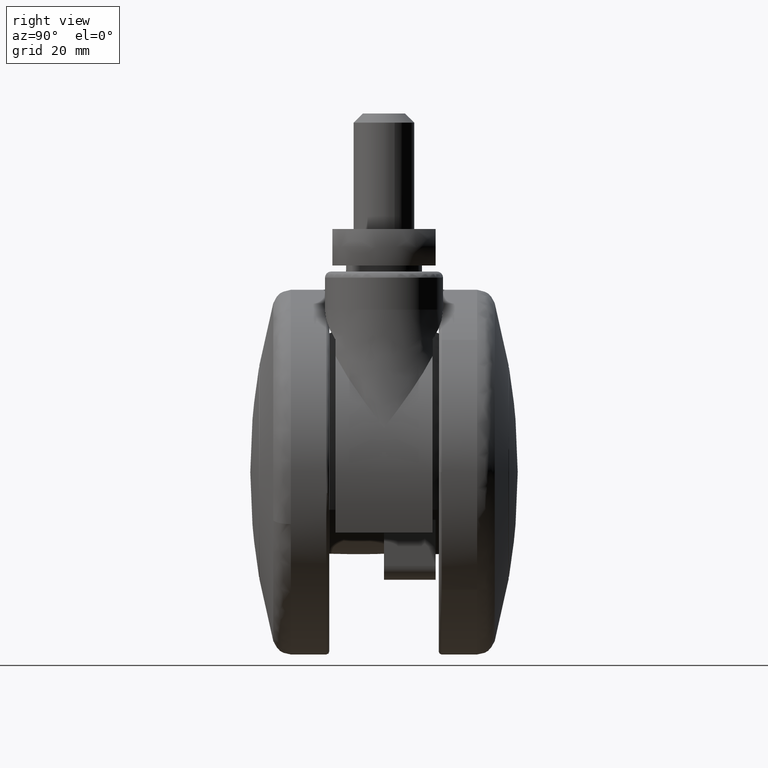
[diagram: clean part render]
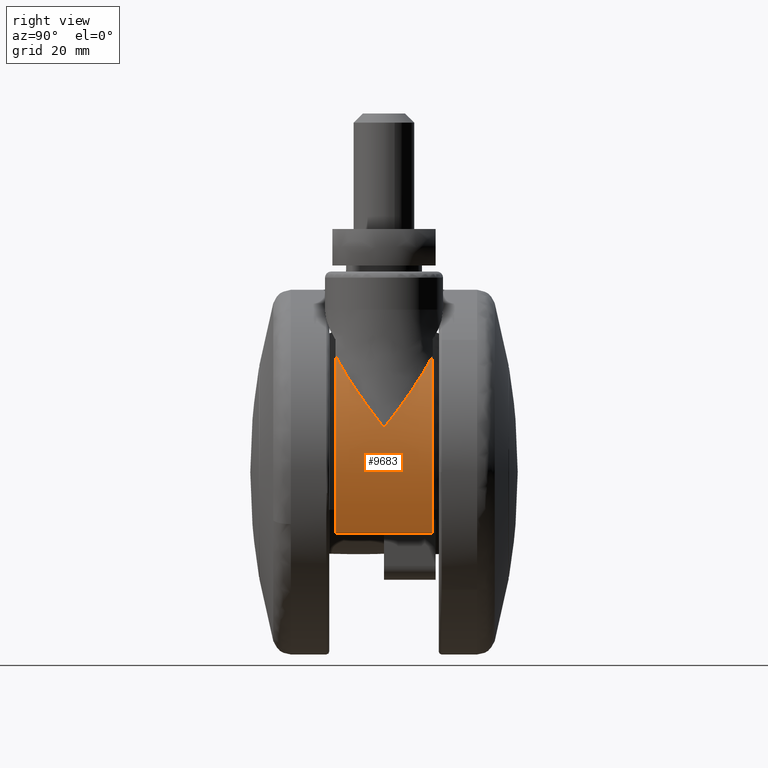
[diagram: same view with one face highlighted and labeled with its STEP entity id]
A machine part, right view. The second image highlights one B-rep face of the part: STEP entity #9683.
In plain terms, the highlighted face is a freeform B-spline surface patch.
Its self-contained STEP definition (entity closure, byte-faithful):
#8672=CARTESIAN_POINT('',(28.284271247461898,7.999999999999789,-10.0));
#8673=VERTEX_POINT('',#8672);
#8679=CARTESIAN_POINT('',(28.284271247461898,-8.0,-10.0));
#8680=VERTEX_POINT('',#8679);
#8681=CARTESIAN_POINT('',(28.284271247461898,7.999999999999789,-10.0));
#8682=CARTESIAN_POINT('',(28.284271247461898,-8.0,-10.0));
#8683=QUASI_UNIFORM_CURVE('',1,(#8681,#8682),.UNSPECIFIED.,.F.,.U.);
#8684=EDGE_CURVE('',#8673,#8680,#8683,.T.);
#9525=CARTESIAN_POINT('',(23.103097454689198,8.0,19.137577903150049));
#9526=VERTEX_POINT('',#9525);
#9553=CARTESIAN_POINT('',(23.103097454686399,-8.0,19.137577903167202));
#9554=VERTEX_POINT('',#9553);
#9564=CARTESIAN_POINT('',(29.099999981897049,0.0,7.293147540917500));
#9565=VERTEX_POINT('',#9564);
#9566=CARTESIAN_POINT('',(23.103097454686399,-8.0,19.137577903167202));
#9567=CARTESIAN_POINT('',(23.491631637550590,-7.759921766544590,18.668535104915851));
#9568=CARTESIAN_POINT('',(23.861664040296329,-7.501385195813394,18.192805815168370));
#9569=CARTESIAN_POINT('',(24.302695428004188,-7.157899281450686,17.589807263616891));
#9570=CARTESIAN_POINT('',(24.389823918570830,-7.088182645651417,17.468790537750099));
#9571=CARTESIAN_POINT('',(24.561957064227968,-6.946765772501954,17.225922872394939));
#9572=CARTESIAN_POINT('',(24.647026837928379,-6.875006669551032,17.103974512818731));
#9573=CARTESIAN_POINT('',(24.898200931065560,-6.657617515530697,16.738192696200670));
#9574=CARTESIAN_POINT('',(25.060512346987970,-6.509693952427899,16.494097010694659));
#9575=CARTESIAN_POINT('',(25.532916366758212,-6.057669066768609,15.760972145622899));
#9576=CARTESIAN_POINT('',(25.828513924086440,-5.745343256792403,15.271100378987400));
#9577=CARTESIAN_POINT('',(26.384710847762982,-5.101786528413657,14.288655352823589));
#9578=CARTESIAN_POINT('',(26.645298164523592,-4.770544504798438,13.796084380968949));
#9579=CARTESIAN_POINT('',(27.378549178466240,-3.751748403265429,12.313832830399440));
#9580=CARTESIAN_POINT('',(27.802943836338869,-3.039305799145861,11.319596698239630));
#9581=CARTESIAN_POINT('',(28.353057974389920,-1.929372298915899,9.817756482274151));
#9582=CARTESIAN_POINT('',(28.521947862301928,-1.552463419039976,9.315401158644908));
#9583=CARTESIAN_POINT('',(28.754323615094119,-0.977402316337553,8.559113598383249));
#9584=CARTESIAN_POINT('',(28.865267230480612,-0.687444115511029,8.180281372320016));
#9585=CARTESIAN_POINT('',(28.985647126623931,-0.345034520211045,7.737075370849777));
#9586=CARTESIAN_POINT('',(29.043586020016139,-0.172812742084711,7.515159311413918));
#9587=CARTESIAN_POINT('',(29.071994461517999,-0.086451033188515,7.404121419792639));
#9588=CARTESIAN_POINT('',(29.084049949369991,-0.049388514740103,7.356514564828036));
#9589=CARTESIAN_POINT('',(29.092061381019910,-0.024675297097744,7.324768433400821));
#9590=CARTESIAN_POINT('',(29.096117419647381,-0.012405675040626,7.308639145983944));
#9591=CARTESIAN_POINT('',(29.099999981897049,0.0,7.293147540917500));
#9592=B_SPLINE_CURVE_WITH_KNOTS('',3,(#9566,#9567,#9568,#9569,#9570,#9571,#9572,#9573,#9574,#9575,#9576,#9577,#9578,#9579,#9580,#9581,#9582,#9583,#9584,#9585,#9586,#9587,#9588,#9589,#9590,#9591),.UNSPECIFIED.,.F.,.U.,(4,2,2,2,2,2,2,2,2,1,1,1,1,2,4),(0.0,0.124999999999999,0.156249999999999,0.187499999999999,0.249999999999999,0.374999999999999,0.499999999999999,0.749999999999999,0.874999999999999,0.937499999999999,0.968750000000000,0.984375000000000,0.992187500000000,0.996093750000000,1.0),.UNSPECIFIED.);
#9593=EDGE_CURVE('',#9554,#9565,#9592,.T.);
#9595=CARTESIAN_POINT('',(29.099999981897049,0.0,7.293147540917500));
#9596=CARTESIAN_POINT('',(29.096117419647399,0.012405675040615,7.308639145983928));
#9597=CARTESIAN_POINT('',(29.092061381019938,0.024675297097942,7.324768433400650));
#9598=CARTESIAN_POINT('',(29.084049949370009,0.049388514740169,7.356514564827907));
#9599=CARTESIAN_POINT('',(29.071994461518049,0.086451033188551,7.404121419792466));
#9600=CARTESIAN_POINT('',(29.043586020016161,0.172812742084423,7.515159311413808));
#9601=CARTESIAN_POINT('',(28.985647126624020,0.345034520210642,7.737075370849449));
#9602=CARTESIAN_POINT('',(28.865267230480839,0.687444115510434,8.180281372319229));
#9603=CARTESIAN_POINT('',(28.754323615094449,0.977402316336697,8.559113598382130));
#9604=CARTESIAN_POINT('',(28.521947862302500,1.552463419038628,9.315401158643123));
#9605=CARTESIAN_POINT('',(28.353057974390719,1.929372298914327,9.817756482271872));
#9606=CARTESIAN_POINT('',(27.802943836340280,3.039305799143338,11.319596698236060));
#9607=CARTESIAN_POINT('',(27.378549178468159,3.751748403262273,12.313832830395061));
#9608=CARTESIAN_POINT('',(26.645298164526508,4.770544504794565,13.796084380963279));
#9609=CARTESIAN_POINT('',(26.384710847766272,5.101786528409592,14.288655352817480));
#9610=CARTESIAN_POINT('',(25.828513924090519,5.745343256787934,15.271100378980440));
#9611=CARTESIAN_POINT('',(25.532916366762731,6.057669066763936,15.760972145615520));
#9612=CARTESIAN_POINT('',(25.060512346993221,6.509693952423003,16.494097010686659));
#9613=CARTESIAN_POINT('',(24.898200931071081,6.657617515525739,16.738192696192449));
#9614=CARTESIAN_POINT('',(24.647026837934309,6.875006669545988,17.103974512810201));
#9615=CARTESIAN_POINT('',(24.561957064234019,6.946765772496899,17.225922872386310));
#9616=CARTESIAN_POINT('',(24.389823918577129,7.088182645646329,17.468790537741310));
#9617=CARTESIAN_POINT('',(24.302695428010619,7.157899281445573,17.589807263608002));
#9618=CARTESIAN_POINT('',(23.861664040303420,7.501385195808230,18.192805815159041));
#9619=CARTESIAN_POINT('',(23.491631637558239,7.759921766539451,18.668535104906180));
#9620=CARTESIAN_POINT('',(23.103097454689198,8.0,19.137577903150049));
#9621=B_SPLINE_CURVE_WITH_KNOTS('',3,(#9595,#9596,#9597,#9598,#9599,#9600,#9601,#9602,#9603,#9604,#9605,#9606,#9607,#9608,#9609,#9610,#9611,#9612,#9613,#9614,#9615,#9616,#9617,#9618,#9619,#9620),.UNSPECIFIED.,.F.,.U.,(4,2,1,1,1,1,2,2,2,2,2,2,2,2,4),(0.0,0.003906250000000,0.007812500000000,0.015625000000000,0.031250000000000,0.062500000000000,0.125000000000000,0.250000000000000,0.499999999999999,0.624999999999999,0.749999999999998,0.812499999999999,0.843749999999999,0.874999999999999,1.0),.UNSPECIFIED.);
#9622=EDGE_CURVE('',#9565,#9526,#9621,.T.);
#9638=CARTESIAN_POINT('',(22.284258929905040,8.400000000000000,20.085113988846238));
#9639=CARTESIAN_POINT('',(22.284258929905040,-8.410000000000000,20.085113988846238));
#9640=CARTESIAN_POINT('',(34.912636409731363,8.400000000000002,6.074039230629404));
#9641=CARTESIAN_POINT('',(34.912636409731363,-8.410000000000000,6.074039230629404));
#9642=CARTESIAN_POINT('',(27.758295174984379,8.400000000000000,-11.378798222063629));
#9643=CARTESIAN_POINT('',(27.758295174984379,-8.410000000000000,-11.378798222063629));
#9651=(BOUNDED_SURFACE()B_SPLINE_SURFACE(1,2,((#9638,#9640,#9642),(#9639,#9641,#9643)),.UNSPECIFIED.,.F.,.F.,.U.)B_SPLINE_SURFACE_WITH_KNOTS((2,2),(3,3),(0.0,16.809999999999999),(0.0,34.589938297945807),.UNSPECIFIED.)GEOMETRIC_REPRESENTATION_ITEM()RATIONAL_B_SPLINE_SURFACE(((1.0,0.842998166375108,0.991576975385090),(1.0,0.842998166375108,0.991576975385090)))REPRESENTATION_ITEM('')SURFACE());
#9652=ORIENTED_EDGE('',*,*,#8684,.F.);
#9653=CARTESIAN_POINT('',(28.284271247461898,7.999999999999830,-10.0));
#9654=CARTESIAN_POINT('',(33.954454142413347,7.999999999999830,6.037699102352541));
#9655=CARTESIAN_POINT('',(23.103097454689198,8.0,19.137577903150049));
#9663=(BOUNDED_CURVE()B_SPLINE_CURVE(2,(#9653,#9654,#9655),.UNSPECIFIED.,.F.,.U.)CURVE()GEOMETRIC_REPRESENTATION_ITEM()QUASI_UNIFORM_CURVE()RATIONAL_B_SPLINE_CURVE((1.0,0.869890956139994,1.0))REPRESENTATION_ITEM(''));
#9664=EDGE_CURVE('',#8673,#9526,#9663,.T.);
#9665=ORIENTED_EDGE('',*,*,#9664,.T.);
#9666=ORIENTED_EDGE('',*,*,#9622,.F.);
#9667=ORIENTED_EDGE('',*,*,#9593,.F.);
#9668=CARTESIAN_POINT('',(28.284271247461898,-8.0,-10.0));
#9669=CARTESIAN_POINT('',(33.954454142416658,-8.000000000000002,6.037699102361879));
#9670=CARTESIAN_POINT('',(23.103097454686399,-8.0,19.137577903167202));
#9678=(BOUNDED_CURVE()B_SPLINE_CURVE(2,(#9668,#9669,#9670),.UNSPECIFIED.,.F.,.U.)CURVE()GEOMETRIC_REPRESENTATION_ITEM()QUASI_UNIFORM_CURVE()RATIONAL_B_SPLINE_CURVE((1.0,0.869890956139870,1.0))REPRESENTATION_ITEM(''));
#9679=EDGE_CURVE('',#8680,#9554,#9678,.T.);
#9680=ORIENTED_EDGE('',*,*,#9679,.F.);
#9681=EDGE_LOOP('',(#9652,#9665,#9666,#9667,#9680));
#9682=FACE_OUTER_BOUND('',#9681,.T.);
#9683=ADVANCED_FACE('',(#9682),#9651,.T.);